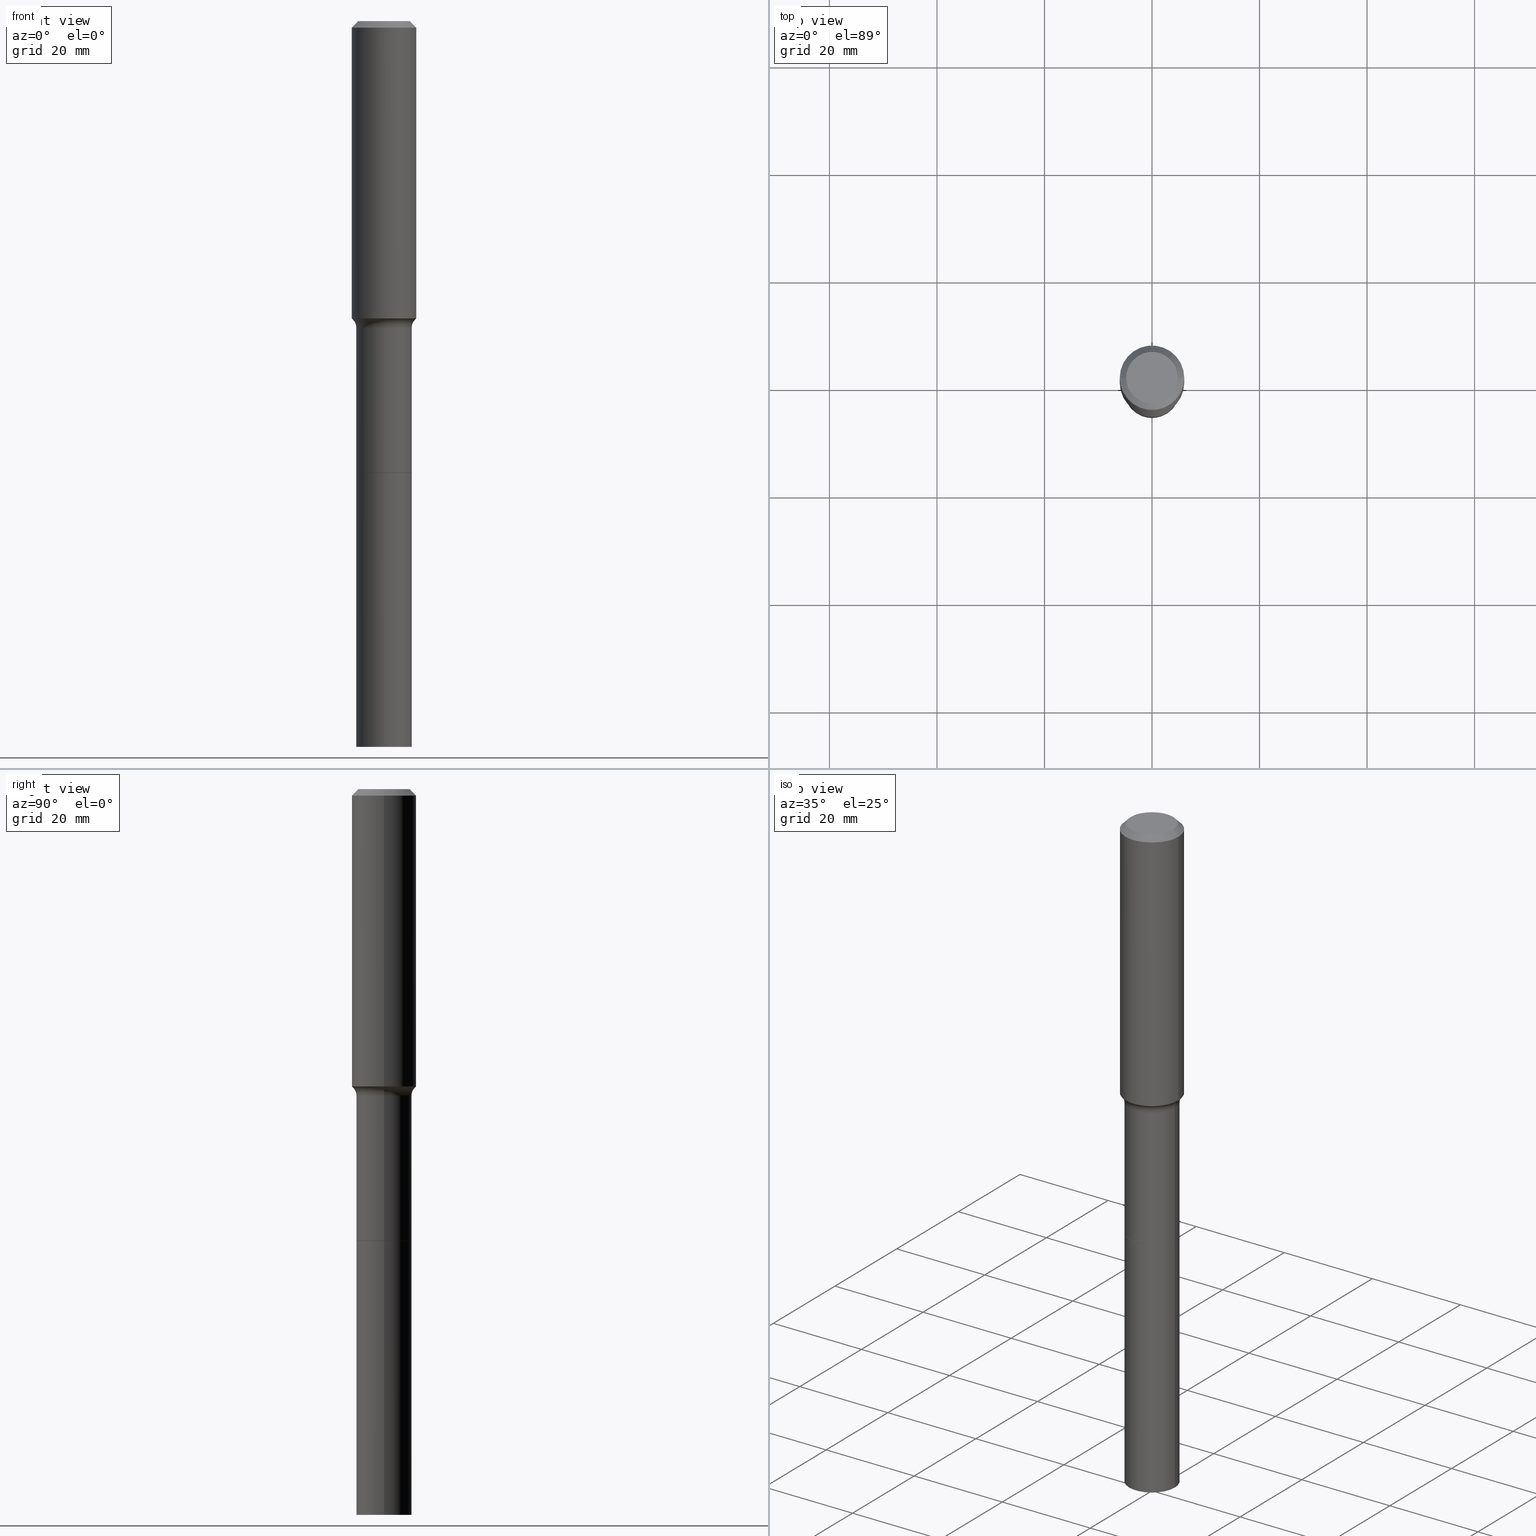
[diagram: canonical four-view strip — front | top / right | iso, engineering-drawing reading convention]
A machine part, canonical four-view strip (front | top / right | iso — engineering-drawing reading convention). The complete STEP part file that produces these views, byte-faithful:
ISO-10303-21;
HEADER;
FILE_DESCRIPTION (( 'STEP AP203' ),
    '1' );
FILE_NAME ('58905.STEP',
    '2025-04-01T15:26:45',
    ( '' ),
    ( '' ),
    'SwSTEP 2.0',
    'SolidWorks 2024',
    '' );
FILE_SCHEMA (( 'CONFIG_CONTROL_DESIGN' ));
ENDSEC;

DATA;
#1 = AXIS2_PLACEMENT_3D ( 'NONE', #25, #315, #224 ) ;
#2 = DIRECTION ( 'NONE',  ( -2.445468806185136597E-29, 3.491481338843145583E-15, 1.000000000000000000 ) ) ;
#3 = APPLICATION_CONTEXT ( 'configuration controlled 3d designs of mechanical parts and assemblies' ) ;
#4 = PLANE ( 'NONE',  #323 ) ;
#5 = EDGE_CURVE ( 'NONE', #101, #383, #95, .T. ) ;
#6 = ADVANCED_FACE ( 'NONE', ( #219 ), #54, .T. ) ;
#7 = CIRCLE ( 'NONE', #379, 0.2031000000000003636 ) ;
#8 = ORIENTED_EDGE ( 'NONE', *, *, #320, .T. ) ;
#9 = CC_DESIGN_APPROVAL ( #261, ( #42 ) ) ;
#10 = EDGE_LOOP ( 'NONE', ( #332, #294, #363, #384 ) ) ;
#11 = LINE ( 'NONE', #296, #63 ) ;
#12 = FACE_OUTER_BOUND ( 'NONE', #263, .T. ) ;
#13 = EDGE_LOOP ( 'NONE', ( #116, #19, #299, #334 ) ) ;
#14 = DIRECTION ( 'NONE',  ( -2.445468806185136597E-29, 3.491481338843145583E-15, 1.000000000000000000 ) ) ;
#15 = DIRECTION ( 'NONE',  ( -2.445468806185136597E-29, 3.491481338843145583E-15, 1.000000000000000000 ) ) ;
#16 = AXIS2_PLACEMENT_3D ( 'NONE', #252, #96, #255 ) ;
#17 = FACE_OUTER_BOUND ( 'NONE', #31, .T. ) ;
#18 = VERTEX_POINT ( 'NONE', #142 ) ;
#19 = ORIENTED_EDGE ( 'NONE', *, *, #47, .T. ) ;
#20 = EDGE_LOOP ( 'NONE', ( #167, #466 ) ) ;
#21 = DIRECTION ( 'NONE',  ( -0.6819983600624879294, 7.399397606724245555E-15, 0.7313537016191801188 ) ) ;
#22 = PERSON_AND_ORGANIZATION ( #472, #506 ) ;
#23 = EDGE_CURVE ( 'NONE', #452, #411, #413, .T. ) ;
#24 = EDGE_CURVE ( 'NONE', #56, #204, #495, .T. ) ;
#25 = CARTESIAN_POINT ( 'NONE',  ( 0.000000000000000000, 0.000000000000000000, 0.000000000000000000 ) ) ;
#26 = VECTOR ( 'NONE', #21, 39.37007874015748854 ) ;
#27 = AXIS2_PLACEMENT_3D ( 'NONE', #354, #516, #196 ) ;
#28 = CARTESIAN_POINT ( 'NONE',  ( 1.155239464041865857E-30, -1.649375784469512352E-16, -0.04724000000000030258 ) ) ;
#29 = DIRECTION ( 'NONE',  ( -2.445468806185136597E-29, 3.491481338843145583E-15, 1.000000000000000000 ) ) ;
#30 = PERSON_AND_ORGANIZATION ( #472, #506 ) ;
#31 = EDGE_LOOP ( 'NONE', ( #297, #210, #415, #454 ) ) ;
#32 = DIRECTION ( 'NONE',  ( -2.445468806185136597E-29, 3.491481338843145583E-15, 1.000000000000000000 ) ) ;
#33 = CARTESIAN_POINT ( 'NONE',  ( 0.2361999999999999933, -1.785387205520586782E-15, -0.04724000000000030258 ) ) ;
#34 = PRODUCT ( '58905', '58905', '', ( #471 ) ) ;
#35 = APPROVAL_DATE_TIME ( #348, #119 ) ;
#36 = PERSON_AND_ORGANIZATION_ROLE ( 'design_owner' ) ;
#37 = CARTESIAN_POINT ( 'NONE',  ( 8.085942607651154722E-29, -1.154458304688486143E-14, -3.306500000000000217 ) ) ;
#38 = DIRECTION ( 'NONE',  ( 2.438088387897960049E-29, -3.491481338843145188E-15, -1.000000000000000000 ) ) ;
#39 = PERSON_AND_ORGANIZATION_ROLE ( 'creator' ) ;
#40 = CC_DESIGN_PERSON_AND_ORGANIZATION_ASSIGNMENT ( #179, #110, ( #42 ) ) ;
#41 = DIRECTION ( 'NONE',  ( -2.445468806185136597E-29, 3.491481338843145583E-15, 1.000000000000000000 ) ) ;
#42 = PRODUCT_DEFINITION_FORMATION_WITH_SPECIFIED_SOURCE ( 'ANY', '', #34, .NOT_KNOWN. ) ;
#43 = CC_DESIGN_DATE_AND_TIME_ASSIGNMENT ( #182, #268, ( #82 ) ) ;
#44 = DIRECTION ( 'NONE',  ( 1.000000000000000000, -6.982962677686265922E-15, 0.000000000000000000 ) ) ;
#45 = DIRECTION ( 'NONE',  ( -1.000000000000000000, 6.982962677686265922E-15, -4.876176775795935793E-29 ) ) ;
#46 = CARTESIAN_POINT ( 'NONE',  ( -0.2030999999999999750, -8.246621289295675448E-15, -3.306500000000000217 ) ) ;
#47 = EDGE_CURVE ( 'NONE', #371, #337, #259, .T. ) ;
#48 = EDGE_CURVE ( 'NONE', #411, #493, #11, .T. ) ;
#49 = EDGE_LOOP ( 'NONE', ( #380, #173, #368, #165 ) ) ;
#50 = FACE_OUTER_BOUND ( 'NONE', #416, .T. ) ;
#51 = ORIENTED_EDGE ( 'NONE', *, *, #24, .T. ) ;
#52 = AXIS2_PLACEMENT_3D ( 'NONE', #322, #192, #356 ) ;
#53 = VERTEX_POINT ( 'NONE', #457 ) ;
#54 = CYLINDRICAL_SURFACE ( 'NONE', #193, 0.2030999999999999472 ) ;
#55 = APPROVAL_PERSON_ORGANIZATION ( #30, #119, #504 ) ;
#56 = VERTEX_POINT ( 'NONE', #375 ) ;
#57 = CARTESIAN_POINT ( 'NONE',  ( 1.299766670487400218E-28, -1.855722331595131973E-14, -5.315000000000000391 ) ) ;
#58 = FACE_OUTER_BOUND ( 'NONE', #444, .T. ) ;
#59 = EDGE_LOOP ( 'NONE', ( #168, #70 ) ) ;
#60 = CARTESIAN_POINT ( 'NONE',  ( -0.2030999999999999472, 1.443112296328763103E-15, -9.990357168307711400E-30 ) ) ;
#61 = CARTESIAN_POINT ( 'NONE',  ( 8.087165342054247524E-29, -1.154632878755428372E-14, -3.307000000000000384 ) ) ;
#62 = CC_DESIGN_PERSON_AND_ORGANIZATION_ASSIGNMENT ( #427, #262, ( #82 ) ) ;
#63 = VECTOR ( 'NONE', #449, 39.37007874015748143 ) ;
#64 = ORIENTED_EDGE ( 'NONE', *, *, #155, .F. ) ;
#65 = EDGE_CURVE ( 'NONE', #101, #18, #481, .T. ) ;
#66 = COORDINATED_UNIVERSAL_TIME_OFFSET ( 5, 0, .BEHIND. ) ;
#67 = EDGE_CURVE ( 'NONE', #499, #251, #267, .T. ) ;
#68 = FACE_OUTER_BOUND ( 'NONE', #386, .T. ) ;
#69 = DIMENSIONAL_EXPONENTS ( 1.000000000000000000, 0.000000000000000000, 0.000000000000000000, 0.000000000000000000, 0.000000000000000000, 0.000000000000000000, 0.000000000000000000 ) ;
#70 = ORIENTED_EDGE ( 'NONE', *, *, #478, .T. ) ;
#71 = DIRECTION ( 'NONE',  ( -1.000000000000000000, 6.982962677686266711E-15, 0.000000000000000000 ) ) ;
#72 = AXIS2_PLACEMENT_3D ( 'NONE', #37, #510, #352 ) ;
#73 =( LENGTH_UNIT ( ) NAMED_UNIT ( * ) SI_UNIT ( $, .METRE. ) );
#74 = EDGE_CURVE ( 'NONE', #383, #324, #390, .T. ) ;
#75 = DIRECTION ( 'NONE',  ( -2.445468806185136597E-29, 3.491481338843145583E-15, 1.000000000000000000 ) ) ;
#76 = PERSON_AND_ORGANIZATION ( #472, #506 ) ;
#77 = DIRECTION ( 'NONE',  ( -6.982962677686266711E-15, -1.000000000000000000, 3.491481338843145583E-15 ) ) ;
#78 = CARTESIAN_POINT ( 'NONE',  ( -0.2362000000000001321, 1.678301941865357577E-15, -1.161852468318209457E-29 ) ) ;
#79 = PERSON_AND_ORGANIZATION ( #472, #506 ) ;
#80 = AXIS2_PLACEMENT_3D ( 'NONE', #440, #124, #441 ) ;
#81 = AXIS2_PLACEMENT_3D ( 'NONE', #28, #467, #221 ) ;
#82 = SECURITY_CLASSIFICATION ( '', '', #175 ) ;
#83 = CARTESIAN_POINT ( 'NONE',  ( 8.085942607651154722E-29, -1.154458304688486143E-14, -3.306500000000000217 ) ) ;
#84 = CARTESIAN_POINT ( 'NONE',  ( 8.087165342054247524E-29, -1.154632878755428372E-14, -3.307000000000000384 ) ) ;
#85 = AXIS2_PLACEMENT_3D ( 'NONE', #362, #406, #45 ) ;
#86 = PLANE ( 'NONE',  #85 ) ;
#87 = CARTESIAN_POINT ( 'NONE',  ( 0.2245917038704665358, -9.212704846427067432E-15, -2.189440131195000472 ) ) ;
#88 = EDGE_LOOP ( 'NONE', ( #366, #257, #248, #103 ) ) ;
#89 = ORIENTED_EDGE ( 'NONE', *, *, #487, .F. ) ;
#90 = ORIENTED_EDGE ( 'NONE', *, *, #121, .F. ) ;
#91 = CARTESIAN_POINT ( 'NONE',  ( 5.354207543847266757E-29, -7.644389360581633134E-15, -2.189440131195000472 ) ) ;
#92 = LOCAL_TIME ( 11, 26, 45.00000000000000000, #341 ) ;
#93 = CIRCLE ( 'NONE', #353, 0.2362000000000002709 ) ;
#94 = ORIENTED_EDGE ( 'NONE', *, *, #139, .F. ) ;
#95 = LINE ( 'NONE', #213, #26 ) ;
#96 = DIRECTION ( 'NONE',  ( -2.445468806185136597E-29, 3.491481338843145583E-15, 1.000000000000000000 ) ) ;
#97 = CARTESIAN_POINT ( 'NONE',  ( 0.2361999999999999933, -1.814313362916447440E-15, -0.04724000000000030258 ) ) ;
#98 = ORIENTED_EDGE ( 'NONE', *, *, #67, .F. ) ;
#99 = CC_DESIGN_DATE_AND_TIME_ASSIGNMENT ( #469, #216, ( #285 ) ) ;
#100 = ORIENTED_EDGE ( 'NONE', *, *, #338, .F. ) ;
#101 = VERTEX_POINT ( 'NONE', #109 ) ;
#102 = CARTESIAN_POINT ( 'NONE',  ( -9.427742298522546243E-47, 1.346031739168365344E-32, 3.855188123715862256E-18 ) ) ;
#103 = ORIENTED_EDGE ( 'NONE', *, *, #446, .F. ) ;
#104 = EDGE_CURVE ( 'NONE', #53, #371, #477, .T. ) ;
#105 = ADVANCED_FACE ( 'NONE', ( #393 ), #229, .T. ) ;
#106 = AXIS2_PLACEMENT_3D ( 'NONE', #343, #350, #423 ) ;
#107 = DIRECTION ( 'NONE',  ( -2.445468806185136877E-29, 3.491481338843145188E-15, 1.000000000000000000 ) ) ;
#108 = FACE_OUTER_BOUND ( 'NONE', #378, .T. ) ;
#109 = CARTESIAN_POINT ( 'NONE',  ( -0.2245917038704663971, -6.048569323610197986E-15, -2.189440131195000472 ) ) ;
#110 = PERSON_AND_ORGANIZATION_ROLE ( 'design_supplier' ) ;
#111 = CYLINDRICAL_SURFACE ( 'NONE', #187, 0.2031000000000001970 ) ;
#112 = DIRECTION ( 'NONE',  ( -2.438088387897960049E-29, 3.491481338843145188E-15, 1.000000000000000000 ) ) ;
#113 = AXIS2_PLACEMENT_3D ( 'NONE', #186, #177, #511 ) ;
#114 = DIRECTION ( 'NONE',  ( 1.000000000000000000, 0.000000000000000000, 0.000000000000000000 ) ) ;
#115 = FACE_OUTER_BOUND ( 'NONE', #49, .T. ) ;
#116 = ORIENTED_EDGE ( 'NONE', *, *, #338, .T. ) ;
#117 = DIRECTION ( 'NONE',  ( 1.000000000000000000, -6.982962677686264344E-15, 0.000000000000000000 ) ) ;
#118 = APPROVAL ( #276, 'UNSPECIFIED' ) ;
#119 = APPROVAL ( #420, 'UNSPECIFIED' ) ;
#120 = EDGE_CURVE ( 'NONE', #324, #251, #280, .T. ) ;
#121 = EDGE_CURVE ( 'NONE', #172, #166, #234, .T. ) ;
#122 = VECTOR ( 'NONE', #227, 39.37007874015748143 ) ;
#123 = AXIS2_PLACEMENT_3D ( 'NONE', #102, #431, #190 ) ;
#124 = DIRECTION ( 'NONE',  ( -2.445468806185136597E-29, 3.491481338843145583E-15, 1.000000000000000000 ) ) ;
#125 = DIRECTION ( 'NONE',  ( 1.000000000000000000, -6.982962677686265922E-15, 0.000000000000000000 ) ) ;
#126 = DIRECTION ( 'NONE',  ( -2.445468806185136597E-29, 3.491481338843145583E-15, 1.000000000000000000 ) ) ;
#127 = CONICAL_SURFACE ( 'NONE', #460, 0.2245917038704665358, 0.7504915783575474286 ) ;
#128 = CARTESIAN_POINT ( 'NONE',  ( 0.2030999999999999750, -1.296282276672294141E-14, -3.306500000000000217 ) ) ;
#129 = EDGE_LOOP ( 'NONE', ( #303, #164, #330, #141 ) ) ;
#130 = ORIENTED_EDGE ( 'NONE', *, *, #74, .T. ) ;
#131 = MANIFOLD_SOLID_BREP ( 'Body-Move/Copy2[2]', #480 ) ;
#132 = ORIENTED_EDGE ( 'NONE', *, *, #447, .T. ) ;
#133 = AXIS2_PLACEMENT_3D ( 'NONE', #475, #32, #232 ) ;
#134 = VECTOR ( 'NONE', #442, 39.37007874015748143 ) ;
#135 = ORIENTED_EDGE ( 'NONE', *, *, #23, .T. ) ;
#136 = CARTESIAN_POINT ( 'NONE',  ( 0.2026000000000000023, -1.296107702605352070E-14, -3.307000000000000384 ) ) ;
#137 = ORIENTED_EDGE ( 'NONE', *, *, #326, .F. ) ;
#138 = EDGE_CURVE ( 'NONE', #337, #493, #298, .T. ) ;
#139 = EDGE_CURVE ( 'NONE', #53, #452, #188, .T. ) ;
#140 = ORIENTED_EDGE ( 'NONE', *, *, #339, .T. ) ;
#141 = ORIENTED_EDGE ( 'NONE', *, *, #138, .F. ) ;
#142 = CARTESIAN_POINT ( 'NONE',  ( 0.2245917038704663971, -9.212704846427067432E-15, -2.189440131195000472 ) ) ;
#143 = AXIS2_PLACEMENT_3D ( 'NONE', #198, #15, #414 ) ;
#144 = VECTOR ( 'NONE', #284, 39.37007874015748143 ) ;
#145 = APPROVAL_STATUS ( 'not_yet_approved' ) ;
#146 = LINE ( 'NONE', #355, #418 ) ;
#147 = FACE_OUTER_BOUND ( 'NONE', #88, .T. ) ;
#148 = DIRECTION ( 'NONE',  ( -2.445468806185136877E-29, 3.491481338843145188E-15, 1.000000000000000000 ) ) ;
#149 = CARTESIAN_POINT ( 'NONE',  ( -0.2026000000000000023, -1.010676920490432152E-14, -3.307000000000000384 ) ) ;
#150 = CYLINDRICAL_SURFACE ( 'NONE', #1, 0.2030999999999999472 ) ;
#151 = AXIS2_PLACEMENT_3D ( 'NONE', #312, #277, #117 ) ;
#152 = CARTESIAN_POINT ( 'NONE',  ( 0.000000000000000000, 0.000000000000000000, 0.000000000000000000 ) ) ;
#153 = DIRECTION ( 'NONE',  ( 2.438088387897960049E-29, -3.491481338843145188E-15, -1.000000000000000000 ) ) ;
#154 = DIRECTION ( 'NONE',  ( -1.000000000000000000, 6.982962677686265922E-15, -4.876176775795935793E-29 ) ) ;
#155 = EDGE_CURVE ( 'NONE', #492, #251, #319, .T. ) ;
#156 = DIRECTION ( 'NONE',  ( 1.000000000000000000, -6.982962677686266711E-15, 4.876176775795936353E-29 ) ) ;
#157 = TOROIDAL_SURFACE ( 'NONE', #358, 0.2830999999999998518, 0.07999999999999994615 ) ;
#158 = DIRECTION ( 'NONE',  ( 1.000000000000000000, -6.982962677686269077E-15, 0.000000000000000000 ) ) ;
#159 = CARTESIAN_POINT ( 'NONE',  ( 0.2031000000000000028, -1.296456850739236371E-14, -3.307000000000000384 ) ) ;
#160 = ADVANCED_BREP_SHAPE_REPRESENTATION ( '58905', ( #313, #131, #250 ), #344 ) ;
#161 = DIRECTION ( 'NONE',  ( 7.105427357601001859E-15, 1.000000000000000000, -3.491481338843145583E-15 ) ) ;
#162 = CIRCLE ( 'NONE', #486, 0.2245917038704665358 ) ;
#163 = ORIENTED_EDGE ( 'NONE', *, *, #433, .T. ) ;
#164 = ORIENTED_EDGE ( 'NONE', *, *, #230, .T. ) ;
#165 = ORIENTED_EDGE ( 'NONE', *, *, #308, .F. ) ;
#166 = VERTEX_POINT ( 'NONE', #159 ) ;
#167 = ORIENTED_EDGE ( 'NONE', *, *, #264, .F. ) ;
#168 = ORIENTED_EDGE ( 'NONE', *, *, #410, .T. ) ;
#169 = EDGE_CURVE ( 'NONE', #18, #101, #162, .T. ) ;
#170 = ORIENTED_EDGE ( 'NONE', *, *, #290, .T. ) ;
#171 = DIRECTION ( 'NONE',  ( 1.000000000000000000, -6.982962677686265922E-15, 0.000000000000000000 ) ) ;
#172 = VERTEX_POINT ( 'NONE', #474 ) ;
#173 = ORIENTED_EDGE ( 'NONE', *, *, #65, .T. ) ;
#174 = EDGE_LOOP ( 'NONE', ( #405, #170, #340, #328 ) ) ;
#175 = SECURITY_CLASSIFICATION_LEVEL ( 'unclassified' ) ;
#176 = APPROVAL_ROLE ( '' ) ;
#177 = DIRECTION ( 'NONE',  ( -2.445468806185136597E-29, 3.491481338843145583E-15, 1.000000000000000000 ) ) ;
#178 = CONICAL_SURFACE ( 'NONE', #438, 0.2026000000000000023, 0.7853981633972434429 ) ;
#179 = PERSON_AND_ORGANIZATION ( #472, #506 ) ;
#180 = CARTESIAN_POINT ( 'NONE',  ( 0.2830999999999998518, -9.811760858417002044E-15, -2.244000000000000217 ) ) ;
#181 = CALENDAR_DATE ( 2025, 1, 4 ) ;
#182 = DATE_AND_TIME ( #462, #369 ) ;
#183 = ORIENTED_EDGE ( 'NONE', *, *, #487, .T. ) ;
#184 = APPLICATION_PROTOCOL_DEFINITION ( 'international standard', 'config_control_design', 1994, #295 ) ;
#185 = CARTESIAN_POINT ( 'NONE',  ( 8.087165342054247524E-29, -1.154632878755428372E-14, -3.307000000000000384 ) ) ;
#186 = CARTESIAN_POINT ( 'NONE',  ( 1.155239464041865857E-30, -1.649375784469512352E-16, -0.04724000000000030258 ) ) ;
#187 = AXIS2_PLACEMENT_3D ( 'NONE', #517, #388, #394 ) ;
#188 = CIRCLE ( 'NONE', #389, 0.2026000000000000023 ) ;
#189 = ADVANCED_FACE ( 'NONE', ( #432 ), #150, .T. ) ;
#190 = DIRECTION ( 'NONE',  ( 1.000000000000000000, -6.982962677686266711E-15, 4.876185090822587894E-29 ) ) ;
#191 = ADVANCED_FACE ( 'NONE', ( #507 ), #233, .F. ) ;
#192 = DIRECTION ( 'NONE',  ( -2.445468806185136597E-29, 3.491481338843145583E-15, 1.000000000000000000 ) ) ;
#193 = AXIS2_PLACEMENT_3D ( 'NONE', #208, #372, #503 ) ;
#194 = CONICAL_SURFACE ( 'NONE', #260, 0.2245917038704665358, 0.7504915783575474286 ) ;
#195 = DIRECTION ( 'NONE',  ( 1.000000000000000000, -6.982962677686266711E-15, 0.000000000000000000 ) ) ;
#196 = DIRECTION ( 'NONE',  ( 1.000000000000000000, -6.982962677686264344E-15, 0.000000000000000000 ) ) ;
#197 = CARTESIAN_POINT ( 'NONE',  ( 5.487632001079447088E-29, -7.834884124364020406E-15, -2.244000000000000217 ) ) ;
#198 = CARTESIAN_POINT ( 'NONE',  ( 8.087165342054247524E-29, -1.154632878755428372E-14, -3.307000000000000384 ) ) ;
#199 = ORIENTED_EDGE ( 'NONE', *, *, #104, .T. ) ;
#200 = PRODUCT_RELATED_PRODUCT_CATEGORY ( 'detail', '', ( #34 ) ) ;
#201 = CARTESIAN_POINT ( 'NONE',  ( -0.2830999999999998518, -5.823337639427176649E-15, -2.244000000000000217 ) ) ;
#202 = CARTESIAN_POINT ( 'NONE',  ( 0.000000000000000000, 0.000000000000000000, 0.000000000000000000 ) ) ;
#203 = ADVANCED_FACE ( 'NONE', ( #115 ), #127, .T. ) ;
#204 = VERTEX_POINT ( 'NONE', #325 ) ;
#205 = VECTOR ( 'NONE', #434, 39.37007874015748143 ) ;
#206 = ADVANCED_FACE ( 'NONE', ( #147 ), #194, .T. ) ;
#207 = DIRECTION ( 'NONE',  ( 1.000000000000000000, -6.982962677686266711E-15, 4.876176775795936353E-29 ) ) ;
#208 = CARTESIAN_POINT ( 'NONE',  ( 0.000000000000000000, 0.000000000000000000, 0.000000000000000000 ) ) ;
#209 = ORIENTED_EDGE ( 'NONE', *, *, #169, .F. ) ;
#210 = ORIENTED_EDGE ( 'NONE', *, *, #308, .T. ) ;
#211 = CARTESIAN_POINT ( 'NONE',  ( 8.087165342054247524E-29, -1.154632878755428372E-14, -3.307000000000000384 ) ) ;
#212 = CYLINDRICAL_SURFACE ( 'NONE', #443, 0.2362000000000001321 ) ;
#213 = CARTESIAN_POINT ( 'NONE',  ( -0.2245917038704665358, -6.048569323610197197E-15, -2.189440131195000472 ) ) ;
#214 = AXIS2_PLACEMENT_3D ( 'NONE', #211, #376, #484 ) ;
#215 = VECTOR ( 'NONE', #240, 39.37007874015748143 ) ;
#216 = DATE_TIME_ROLE ( 'creation_date' ) ;
#217 = CALENDAR_DATE ( 2025, 1, 4 ) ;
#218 = ORIENTED_EDGE ( 'NONE', *, *, #120, .T. ) ;
#219 = FACE_OUTER_BOUND ( 'NONE', #129, .T. ) ;
#220 = ADVANCED_FACE ( 'NONE', ( #464 ), #398, .T. ) ;
#221 = DIRECTION ( 'NONE',  ( -1.000000000000000000, 6.982962677686266711E-15, 0.000000000000000000 ) ) ;
#222 = DIRECTION ( 'NONE',  ( 1.000000000000000000, -6.982962677686261977E-15, 0.000000000000000000 ) ) ;
#223 = EDGE_CURVE ( 'NONE', #18, #493, #235, .T. ) ;
#224 = DIRECTION ( 'NONE',  ( 1.000000000000000000, -6.982962677686266711E-15, 4.876176775795935793E-29 ) ) ;
#225 = AXIS2_PLACEMENT_3D ( 'NONE', #373, #126, #445 ) ;
#226 = PERSON_AND_ORGANIZATION ( #472, #506 ) ;
#227 = DIRECTION ( 'NONE',  ( -2.445468806185136877E-29, 3.491481338843145188E-15, 1.000000000000000000 ) ) ;
#228 = APPLICATION_PROTOCOL_DEFINITION ( 'international standard', 'config_control_design', 1994, #3 ) ;
#229 = PLANE ( 'NONE',  #437 ) ;
#230 = EDGE_CURVE ( 'NONE', #371, #411, #342, .T. ) ;
#231 = CARTESIAN_POINT ( 'NONE',  ( -0.2361999999999999933, -2.204629895681507301E-15, -0.04724000000000030258 ) ) ;
#232 = DIRECTION ( 'NONE',  ( 1.000000000000000000, -6.982962677686267499E-15, 0.000000000000000000 ) ) ;
#233 = PLANE ( 'NONE',  #317 ) ;
#234 = CIRCLE ( 'NONE', #151, 0.2031000000000000028 ) ;
#235 = CIRCLE ( 'NONE', #458, 0.07999999999999993228 ) ;
#236 = COORDINATED_UNIVERSAL_TIME_OFFSET ( 5, 0, .BEHIND. ) ;
#237 = LOCAL_TIME ( 11, 26, 45.00000000000000000, #387 ) ;
#238 = CONICAL_SURFACE ( 'NONE', #214, 0.2026000000000000023, 0.7853981633972434429 ) ;
#239 = AXIS2_PLACEMENT_3D ( 'NONE', #202, #367, #207 ) ;
#240 = DIRECTION ( 'NONE',  ( -0.7071067811864026886, 7.493145998869830357E-15, 0.7071067811866923458 ) ) ;
#241 = DIRECTION ( 'NONE',  ( 0.6819983600624879294, -2.208861293262368123E-15, 0.7313537016191801188 ) ) ;
#242 = DIRECTION ( 'NONE',  ( 1.000000000000000000, -6.982962677686261977E-15, 0.000000000000000000 ) ) ;
#243 = LINE ( 'NONE', #364, #496 ) ;
#244 = ADVANCED_FACE ( 'NONE', ( #12 ), #86, .F. ) ;
#245 = ADVANCED_FACE ( 'NONE', ( #370 ), #157, .F. ) ;
#246 = CARTESIAN_POINT ( 'NONE',  ( 5.487632001079447088E-29, -7.834884124364020406E-15, -2.244000000000000217 ) ) ;
#247 = CIRCLE ( 'NONE', #143, 0.2031000000000000028 ) ;
#248 = ORIENTED_EDGE ( 'NONE', *, *, #307, .F. ) ;
#249 = CIRCLE ( 'NONE', #288, 0.07999999999999993228 ) ;
#250 = AXIS2_PLACEMENT_3D ( 'NONE', #152, #318, #114 ) ;
#251 = VERTEX_POINT ( 'NONE', #97 ) ;
#252 = CARTESIAN_POINT ( 'NONE',  ( -9.427742298522546243E-47, 1.346031739168365344E-32, 3.855188123715862256E-18 ) ) ;
#253 = EDGE_LOOP ( 'NONE', ( #329, #130, #137, #98 ) ) ;
#254 = VERTEX_POINT ( 'NONE', #403 ) ;
#255 = DIRECTION ( 'NONE',  ( 1.000000000000000000, -6.982962677686266711E-15, 4.876185090822587894E-29 ) ) ;
#256 = ORIENTED_EDGE ( 'NONE', *, *, #104, .F. ) ;
#257 = ORIENTED_EDGE ( 'NONE', *, *, #5, .T. ) ;
#258 = VECTOR ( 'NONE', #241, 39.37007874015748854 ) ;
#259 = LINE ( 'NONE', #60, #272 ) ;
#260 = AXIS2_PLACEMENT_3D ( 'NONE', #359, #29, #309 ) ;
#261 = APPROVAL ( #145, 'UNSPECIFIED' ) ;
#262 = PERSON_AND_ORGANIZATION_ROLE ( 'classification_officer' ) ;
#263 = EDGE_LOOP ( 'NONE', ( #163, #421 ) ) ;
#264 = EDGE_CURVE ( 'NONE', #204, #56, #7, .T. ) ;
#265 = PERSON_AND_ORGANIZATION_ROLE ( 'creator' ) ;
#266 =( CONVERSION_BASED_UNIT ( 'INCH', #311 ) LENGTH_UNIT ( ) NAMED_UNIT ( #69 ) );
#267 = LINE ( 'NONE', #397, #122 ) ;
#268 = DATE_TIME_ROLE ( 'classification_date' ) ;
#269 = CYLINDRICAL_SURFACE ( 'NONE', #133, 0.2031000000000001970 ) ;
#270 = DIRECTION ( 'NONE',  ( 1.000000000000000000, -6.982962677686265922E-15, 4.876176775795935793E-29 ) ) ;
#271 = CONICAL_SURFACE ( 'NONE', #81, 0.2361999999999999933, 0.7853981633974450594 ) ;
#272 = VECTOR ( 'NONE', #107, 39.37007874015748143 ) ;
#273 = CARTESIAN_POINT ( 'NONE',  ( 5.354207543847266757E-29, -7.644389360581633134E-15, -2.189440131195000472 ) ) ;
#274 = DIRECTION ( 'NONE',  ( -2.445468806185136597E-29, 3.491481338843145583E-15, 1.000000000000000000 ) ) ;
#275 = ORIENTED_EDGE ( 'NONE', *, *, #381, .F. ) ;
#276 = APPROVAL_STATUS ( 'not_yet_approved' ) ;
#277 = DIRECTION ( 'NONE',  ( -2.445468806185136597E-29, 3.491481338843145583E-15, 1.000000000000000000 ) ) ;
#278 = CARTESIAN_POINT ( 'NONE',  ( -0.2030999999999998640, -8.246621289295677025E-15, -2.244000000000000217 ) ) ;
#279 = APPROVAL_DATE_TIME ( #436, #118 ) ;
#280 = CIRCLE ( 'NONE', #113, 0.2361999999999999933 ) ;
#281 = APPROVAL_PERSON_ORGANIZATION ( #22, #118, #176 ) ;
#282 = PRODUCT_DEFINITION_SHAPE ( 'NONE', 'NONE',  #285 ) ;
#283 = CC_DESIGN_APPROVAL ( #119, ( #82 ) ) ;
#284 = DIRECTION ( 'NONE',  ( 0.7071067811865452413, -7.319954787623248157E-15, -0.7071067811865497932 ) ) ;
#285 = PRODUCT_DEFINITION ( 'UNKNOWN', '', #42, #293 ) ;
#286 = LINE ( 'NONE', #87, #258 ) ;
#287 = AXIS2_PLACEMENT_3D ( 'NONE', #57, #461, #222 ) ;
#288 = AXIS2_PLACEMENT_3D ( 'NONE', #201, #161, #490 ) ;
#289 = CARTESIAN_POINT ( 'NONE',  ( 1.299766670487400218E-28, -1.855722331595131973E-14, -5.315000000000000391 ) ) ;
#290 = EDGE_CURVE ( 'NONE', #101, #337, #249, .T. ) ;
#291 = ADVANCED_FACE ( 'NONE', ( #17 ), #212, .T. ) ;
#292 = DIRECTION ( 'NONE',  ( -2.445468806185136597E-29, 3.491481338843145583E-15, 1.000000000000000000 ) ) ;
#293 = DESIGN_CONTEXT ( 'detailed design', #3, 'design' ) ;
#294 = ORIENTED_EDGE ( 'NONE', *, *, #155, .T. ) ;
#295 = APPLICATION_CONTEXT ( 'configuration controlled 3d designs of mechanical parts and assemblies' ) ;
#296 = CARTESIAN_POINT ( 'NONE',  ( 0.2030999999999999472, -1.418239719838080381E-15, 9.903515031641543342E-30 ) ) ;
#297 = ORIENTED_EDGE ( 'NONE', *, *, #74, .F. ) ;
#298 = CIRCLE ( 'NONE', #106, 0.2030999999999998640 ) ;
#299 = ORIENTED_EDGE ( 'NONE', *, *, #339, .F. ) ;
#300 = DIRECTION ( 'NONE',  ( -2.445468806185136597E-29, 3.491481338843145583E-15, 1.000000000000000000 ) ) ;
#301 = ORIENTED_EDGE ( 'NONE', *, *, #264, .T. ) ;
#302 = DIRECTION ( 'NONE',  ( 1.000000000000000000, -6.982962677686266711E-15, 0.000000000000000000 ) ) ;
#303 = ORIENTED_EDGE ( 'NONE', *, *, #47, .F. ) ;
#304 = DIRECTION ( 'NONE',  ( 0.7071067811864026886, -2.468850131080739687E-15, 0.7071067811866923458 ) ) ;
#305 = CIRCLE ( 'NONE', #80, 0.2361999999999999933 ) ;
#306 = ORIENTED_EDGE ( 'NONE', *, *, #447, .F. ) ;
#307 = EDGE_CURVE ( 'NONE', #499, #383, #93, .T. ) ;
#308 = EDGE_CURVE ( 'NONE', #383, #499, #333, .T. ) ;
#309 = DIRECTION ( 'NONE',  ( 1.000000000000000000, -6.982962677686266711E-15, 0.000000000000000000 ) ) ;
#310 = DATE_AND_TIME ( #470, #237 ) ;
#311 = LENGTH_MEASURE_WITH_UNIT ( LENGTH_MEASURE( 0.02539999999999999897 ), #73 );
#312 = CARTESIAN_POINT ( 'NONE',  ( 8.087165342054247524E-29, -1.154632878755428372E-14, -3.307000000000000384 ) ) ;
#313 = MANIFOLD_SOLID_BREP ( 'Body-Move/Copy2[1]', #331 ) ;
#314 = CARTESIAN_POINT ( 'NONE',  ( 0.1889600000000000168, -1.540873453589747738E-15, 3.855188123725863225E-18 ) ) ;
#315 = DIRECTION ( 'NONE',  ( -2.445468806185136597E-29, 3.491481338843145583E-15, 1.000000000000000000 ) ) ;
#316 = APPROVAL_PERSON_ORGANIZATION ( #351, #261, #465 ) ;
#317 = AXIS2_PLACEMENT_3D ( 'NONE', #185, #112, #270 ) ;
#318 = DIRECTION ( 'NONE',  ( 0.000000000000000000, 0.000000000000000000, 1.000000000000000000 ) ) ;
#319 = LINE ( 'NONE', #33, #144 ) ;
#320 = EDGE_CURVE ( 'NONE', #254, #324, #357, .T. ) ;
#321 = VECTOR ( 'NONE', #304, 39.37007874015748143 ) ;
#322 = CARTESIAN_POINT ( 'NONE',  ( 5.323765434652751771E-29, -7.600926096646780419E-15, -2.176991757648987669 ) ) ;
#323 = AXIS2_PLACEMENT_3D ( 'NONE', #396, #38, #154 ) ;
#324 = VERTEX_POINT ( 'NONE', #231 ) ;
#325 = CARTESIAN_POINT ( 'NONE',  ( 0.2031000000000003636, -1.997546303578940445E-14, -5.315000000000000391 ) ) ;
#326 = EDGE_CURVE ( 'NONE', #251, #324, #305, .T. ) ;
#327 = AXIS2_PLACEMENT_3D ( 'NONE', #91, #14, #302 ) ;
#328 = ORIENTED_EDGE ( 'NONE', *, *, #223, .F. ) ;
#329 = ORIENTED_EDGE ( 'NONE', *, *, #307, .T. ) ;
#330 = ORIENTED_EDGE ( 'NONE', *, *, #48, .T. ) ;
#331 = CLOSED_SHELL ( 'NONE', ( #488, #105, #508, #244 ) ) ;
#332 = ORIENTED_EDGE ( 'NONE', *, *, #478, .F. ) ;
#333 = CIRCLE ( 'NONE', #52, 0.2362000000000002709 ) ;
#334 = ORIENTED_EDGE ( 'NONE', *, *, #48, .F. ) ;
#335 = EDGE_LOOP ( 'NONE', ( #455, #199, #100, #491 ) ) ;
#336 = EDGE_LOOP ( 'NONE', ( #275, #94 ) ) ;
#337 = VERTEX_POINT ( 'NONE', #278 ) ;
#338 = EDGE_CURVE ( 'NONE', #411, #371, #365, .T. ) ;
#339 = EDGE_CURVE ( 'NONE', #493, #337, #408, .T. ) ;
#340 = ORIENTED_EDGE ( 'NONE', *, *, #138, .T. ) ;
#341 = COORDINATED_UNIVERSAL_TIME_OFFSET ( 5, 0, .BEHIND. ) ;
#342 = CIRCLE ( 'NONE', #72, 0.2030999999999999750 ) ;
#343 = CARTESIAN_POINT ( 'NONE',  ( 5.487632001079447088E-29, -7.834884124364020406E-15, -2.244000000000000217 ) ) ;
#344 =( GEOMETRIC_REPRESENTATION_CONTEXT ( 3 ) GLOBAL_UNCERTAINTY_ASSIGNED_CONTEXT ( ( #489 ) ) GLOBAL_UNIT_ASSIGNED_CONTEXT ( ( #266, #513, #479 ) ) REPRESENTATION_CONTEXT ( 'NONE', 'WORKASPACE' ) );
#345 = CC_DESIGN_SECURITY_CLASSIFICATION ( #82, ( #42 ) ) ;
#346 = DIRECTION ( 'NONE',  ( 1.000000000000000000, -6.982962677686265133E-15, 0.000000000000000000 ) ) ;
#347 = ADVANCED_FACE ( 'NONE', ( #360 ), #4, .F. ) ;
#348 = DATE_AND_TIME ( #217, #509 ) ;
#349 = FACE_OUTER_BOUND ( 'NONE', #412, .T. ) ;
#350 = DIRECTION ( 'NONE',  ( -2.445468806185136597E-29, 3.491481338843145583E-15, 1.000000000000000000 ) ) ;
#351 = PERSON_AND_ORGANIZATION ( #472, #506 ) ;
#352 = DIRECTION ( 'NONE',  ( 1.000000000000000000, -6.982962677686265922E-15, 0.000000000000000000 ) ) ;
#353 = AXIS2_PLACEMENT_3D ( 'NONE', #518, #401, #158 ) ;
#354 = CARTESIAN_POINT ( 'NONE',  ( 5.487632001079447088E-29, -7.834884124364020406E-15, -2.244000000000000217 ) ) ;
#355 = CARTESIAN_POINT ( 'NONE',  ( -0.2031000000000001970, -1.010321649122551983E-14, -3.307000000000000384 ) ) ;
#356 = DIRECTION ( 'NONE',  ( 1.000000000000000000, -6.982962677686269077E-15, 0.000000000000000000 ) ) ;
#357 = LINE ( 'NONE', #430, #205 ) ;
#358 = AXIS2_PLACEMENT_3D ( 'NONE', #197, #292, #451 ) ;
#359 = CARTESIAN_POINT ( 'NONE',  ( 5.354207543847266757E-29, -7.644389360581633134E-15, -2.189440131195000472 ) ) ;
#360 = FACE_OUTER_BOUND ( 'NONE', #59, .T. ) ;
#361 = DIRECTION ( 'NONE',  ( -2.445468806185136597E-29, 3.491481338843145583E-15, 1.000000000000000000 ) ) ;
#362 = CARTESIAN_POINT ( 'NONE',  ( 8.087165342054247524E-29, -1.154632878755428372E-14, -3.307000000000000384 ) ) ;
#363 = ORIENTED_EDGE ( 'NONE', *, *, #326, .T. ) ;
#364 = CARTESIAN_POINT ( 'NONE',  ( 0.2031000000000001970, -1.296456850739236686E-14, -3.307000000000000384 ) ) ;
#365 = CIRCLE ( 'NONE', #505, 0.2030999999999999750 ) ;
#366 = ORIENTED_EDGE ( 'NONE', *, *, #169, .T. ) ;
#367 = DIRECTION ( 'NONE',  ( -2.445468806185136597E-29, 3.491481338843145583E-15, 1.000000000000000000 ) ) ;
#368 = ORIENTED_EDGE ( 'NONE', *, *, #446, .T. ) ;
#369 = LOCAL_TIME ( 11, 26, 45.00000000000000000, #66 ) ;
#370 = FACE_OUTER_BOUND ( 'NONE', #174, .T. ) ;
#371 = VERTEX_POINT ( 'NONE', #46 ) ;
#372 = DIRECTION ( 'NONE',  ( -2.445468806185136597E-29, 3.491481338843145583E-15, 1.000000000000000000 ) ) ;
#373 = CARTESIAN_POINT ( 'NONE',  ( 8.087165342054247524E-29, -1.154632878755428372E-14, -3.307000000000000384 ) ) ;
#374 = DIRECTION ( 'NONE',  ( -2.445468806185136597E-29, 3.491481338843145583E-15, 1.000000000000000000 ) ) ;
#375 = CARTESIAN_POINT ( 'NONE',  ( -0.2031000000000003636, -1.360866375542403310E-14, -5.315000000000000391 ) ) ;
#376 = DIRECTION ( 'NONE',  ( -2.445468806185136597E-29, 3.491481338843145583E-15, 1.000000000000000000 ) ) ;
#377 = CARTESIAN_POINT ( 'NONE',  ( 0.000000000000000000, 0.000000000000000000, 0.000000000000000000 ) ) ;
#378 = EDGE_LOOP ( 'NONE', ( #89, #51, #132, #90 ) ) ;
#379 = AXIS2_PLACEMENT_3D ( 'NONE', #289, #361, #242 ) ;
#380 = ORIENTED_EDGE ( 'NONE', *, *, #5, .F. ) ;
#381 = EDGE_CURVE ( 'NONE', #452, #53, #450, .T. ) ;
#382 = ADVANCED_FACE ( 'NONE', ( #50 ), #497, .F. ) ;
#383 = VERTEX_POINT ( 'NONE', #453 ) ;
#384 = ORIENTED_EDGE ( 'NONE', *, *, #320, .F. ) ;
#385 = CARTESIAN_POINT ( 'NONE',  ( 0.2026000000000000023, -1.296107702605352070E-14, -3.307000000000000384 ) ) ;
#386 = EDGE_LOOP ( 'NONE', ( #301, #183, #500, #306 ) ) ;
#387 = COORDINATED_UNIVERSAL_TIME_OFFSET ( 5, 0, .BEHIND. ) ;
#388 = DIRECTION ( 'NONE',  ( -2.445468806185136597E-29, 3.491481338843145583E-15, 1.000000000000000000 ) ) ;
#389 = AXIS2_PLACEMENT_3D ( 'NONE', #84, #2, #125 ) ;
#390 = LINE ( 'NONE', #78, #134 ) ;
#391 = APPROVAL_DATE_TIME ( #310, #261 ) ;
#392 = CARTESIAN_POINT ( 'NONE',  ( 0.2030999999999998640, -9.253123844202098814E-15, -2.244000000000000217 ) ) ;
#393 = FACE_OUTER_BOUND ( 'NONE', #20, .T. ) ;
#394 = DIRECTION ( 'NONE',  ( 1.000000000000000000, -6.982962677686267499E-15, 0.000000000000000000 ) ) ;
#395 = DIRECTION ( 'NONE',  ( 2.445468806185136597E-29, -3.491481338843145583E-15, -1.000000000000000000 ) ) ;
#396 = CARTESIAN_POINT ( 'NONE',  ( -4.713871149261273121E-47, 6.730158695841826722E-33, 1.927594061857931128E-18 ) ) ;
#397 = CARTESIAN_POINT ( 'NONE',  ( 0.2362000000000001321, -1.649375784469497117E-15, 1.151752954443000789E-29 ) ) ;
#398 = CONICAL_SURFACE ( 'NONE', #514, 0.2361999999999999933, 0.7853981633974450594 ) ;
#399 = CALENDAR_DATE ( 2025, 1, 4 ) ;
#400 = ADVANCED_FACE ( 'NONE', ( #407 ), #404, .T. ) ;
#401 = DIRECTION ( 'NONE',  ( -2.445468806185136597E-29, 3.491481338843145583E-15, 1.000000000000000000 ) ) ;
#402 = DIRECTION ( 'NONE',  ( -2.445468806185136597E-29, 3.491481338843145583E-15, 1.000000000000000000 ) ) ;
#403 = CARTESIAN_POINT ( 'NONE',  ( -0.1889600000000000168, 1.401969416799070942E-15, 3.855188123706346622E-18 ) ) ;
#404 = CYLINDRICAL_SURFACE ( 'NONE', #239, 0.2362000000000001321 ) ;
#405 = ORIENTED_EDGE ( 'NONE', *, *, #65, .F. ) ;
#406 = DIRECTION ( 'NONE',  ( 2.438088387897960049E-29, -3.491481338843145188E-15, -1.000000000000000000 ) ) ;
#407 = FACE_OUTER_BOUND ( 'NONE', #253, .T. ) ;
#408 = CIRCLE ( 'NONE', #27, 0.2030999999999998640 ) ;
#409 = CC_DESIGN_APPROVAL ( #118, ( #285 ) ) ;
#410 = EDGE_CURVE ( 'NONE', #254, #492, #473, .T. ) ;
#411 = VERTEX_POINT ( 'NONE', #128 ) ;
#412 = EDGE_LOOP ( 'NONE', ( #64, #501, #8, #218 ) ) ;
#413 = LINE ( 'NONE', #136, #321 ) ;
#414 = DIRECTION ( 'NONE',  ( 1.000000000000000000, -6.982962677686264344E-15, 0.000000000000000000 ) ) ;
#415 = ORIENTED_EDGE ( 'NONE', *, *, #67, .T. ) ;
#416 = EDGE_LOOP ( 'NONE', ( #448, #209, #419, #140 ) ) ;
#417 = FACE_OUTER_BOUND ( 'NONE', #335, .T. ) ;
#418 = VECTOR ( 'NONE', #463, 39.37007874015748143 ) ;
#419 = ORIENTED_EDGE ( 'NONE', *, *, #223, .T. ) ;
#420 = APPROVAL_STATUS ( 'not_yet_approved' ) ;
#421 = ORIENTED_EDGE ( 'NONE', *, *, #121, .T. ) ;
#422 = COORDINATED_UNIVERSAL_TIME_OFFSET ( 5, 0, .BEHIND. ) ;
#423 = DIRECTION ( 'NONE',  ( 1.000000000000000000, -6.982962677686264344E-15, 0.000000000000000000 ) ) ;
#424 = SHAPE_DEFINITION_REPRESENTATION ( #282, #160 ) ;
#425 = AXIS2_PLACEMENT_3D ( 'NONE', #246, #300, #485 ) ;
#426 = CARTESIAN_POINT ( 'NONE',  ( 1.299766670487400218E-28, -1.855722331595131973E-14, -5.315000000000000391 ) ) ;
#427 = PERSON_AND_ORGANIZATION ( #472, #506 ) ;
#428 = CARTESIAN_POINT ( 'NONE',  ( 0.2362000000000002709, -9.250301881116278522E-15, -2.176991757648987669 ) ) ;
#429 = CARTESIAN_POINT ( 'NONE',  ( 1.155239464041865857E-30, -1.649375784469512352E-16, -0.04724000000000030258 ) ) ;
#430 = CARTESIAN_POINT ( 'NONE',  ( -0.2361999999999999933, 1.484438206022545019E-15, -0.04724000000000030258 ) ) ;
#431 = DIRECTION ( 'NONE',  ( -2.445468806185136597E-29, 3.491481338843145583E-15, 1.000000000000000000 ) ) ;
#432 = FACE_OUTER_BOUND ( 'NONE', #13, .T. ) ;
#433 = EDGE_CURVE ( 'NONE', #166, #172, #247, .T. ) ;
#434 = DIRECTION ( 'NONE',  ( -0.7071067811865452413, 2.468850131082233000E-15, -0.7071067811865497932 ) ) ;
#435 = ADVANCED_FACE ( 'NONE', ( #58 ), #238, .T. ) ;
#436 = DATE_AND_TIME ( #399, #92 ) ;
#437 = AXIS2_PLACEMENT_3D ( 'NONE', #426, #153, #483 ) ;
#438 = AXIS2_PLACEMENT_3D ( 'NONE', #61, #374, #171 ) ;
#439 = CC_DESIGN_PERSON_AND_ORGANIZATION_ASSIGNMENT ( #226, #265, ( #42 ) ) ;
#440 = CARTESIAN_POINT ( 'NONE',  ( 1.155239464041865857E-30, -1.649375784469512352E-16, -0.04724000000000030258 ) ) ;
#441 = DIRECTION ( 'NONE',  ( 1.000000000000000000, -6.982962677686266711E-15, 0.000000000000000000 ) ) ;
#442 = DIRECTION ( 'NONE',  ( -2.445468806185136877E-29, 3.491481338843145188E-15, 1.000000000000000000 ) ) ;
#443 = AXIS2_PLACEMENT_3D ( 'NONE', #377, #274, #156 ) ;
#444 = EDGE_LOOP ( 'NONE', ( #256, #494, #135, #456 ) ) ;
#445 = DIRECTION ( 'NONE',  ( 1.000000000000000000, -6.982962677686265922E-15, 0.000000000000000000 ) ) ;
#446 = EDGE_CURVE ( 'NONE', #18, #499, #286, .T. ) ;
#447 = EDGE_CURVE ( 'NONE', #204, #166, #243, .T. ) ;
#448 = ORIENTED_EDGE ( 'NONE', *, *, #290, .F. ) ;
#449 = DIRECTION ( 'NONE',  ( -2.445468806185136877E-29, 3.491481338843145188E-15, 1.000000000000000000 ) ) ;
#450 = CIRCLE ( 'NONE', #225, 0.2026000000000000023 ) ;
#451 = DIRECTION ( 'NONE',  ( 1.000000000000000000, -6.982962677686263555E-15, 4.883557194083111780E-29 ) ) ;
#452 = VERTEX_POINT ( 'NONE', #385 ) ;
#453 = CARTESIAN_POINT ( 'NONE',  ( -0.2362000000000002709, -5.922624154781422447E-15, -2.176991757648987669 ) ) ;
#454 = ORIENTED_EDGE ( 'NONE', *, *, #120, .F. ) ;
#455 = ORIENTED_EDGE ( 'NONE', *, *, #381, .T. ) ;
#456 = ORIENTED_EDGE ( 'NONE', *, *, #230, .F. ) ;
#457 = CARTESIAN_POINT ( 'NONE',  ( -0.2026000000000000023, -1.010411997773020953E-14, -3.307000000000000384 ) ) ;
#458 = AXIS2_PLACEMENT_3D ( 'NONE', #180, #77, #346 ) ;
#459 = CIRCLE ( 'NONE', #123, 0.1889600000000000168 ) ;
#460 = AXIS2_PLACEMENT_3D ( 'NONE', #273, #41, #195 ) ;
#461 = DIRECTION ( 'NONE',  ( -2.445468806185136597E-29, 3.491481338843145583E-15, 1.000000000000000000 ) ) ;
#462 = CALENDAR_DATE ( 2025, 1, 4 ) ;
#463 = DIRECTION ( 'NONE',  ( -2.445468806185136877E-29, 3.491481338843145188E-15, 1.000000000000000000 ) ) ;
#464 = FACE_OUTER_BOUND ( 'NONE', #10, .T. ) ;
#465 = APPROVAL_ROLE ( '' ) ;
#466 = ORIENTED_EDGE ( 'NONE', *, *, #24, .F. ) ;
#467 = DIRECTION ( 'NONE',  ( 2.445468806185136597E-29, -3.491481338843145583E-15, -1.000000000000000000 ) ) ;
#468 = DIRECTION ( 'NONE',  ( 1.000000000000000000, -6.982962677686266711E-15, 0.000000000000000000 ) ) ;
#469 = DATE_AND_TIME ( #181, #482 ) ;
#470 = CALENDAR_DATE ( 2025, 1, 4 ) ;
#471 = MECHANICAL_CONTEXT ( 'NONE', #295, 'mechanical' ) ;
#472 = PERSON ( 'UNSPECIFIED', 'UNSPECIFIED', 'UNSPECIFIED', ('UNSPECIFIED'), ('UNSPECIFIED'), ('UNSPECIFIED') ) ;
#473 = CIRCLE ( 'NONE', #16, 0.1889600000000000168 ) ;
#474 = CARTESIAN_POINT ( 'NONE',  ( -0.2031000000000000028, -1.360866375542403783E-14, -3.307000000000000384 ) ) ;
#475 = CARTESIAN_POINT ( 'NONE',  ( 8.087165342054247524E-29, -1.154632878755428372E-14, -3.307000000000000384 ) ) ;
#476 = ADVANCED_FACE ( 'NONE', ( #417 ), #178, .T. ) ;
#477 = LINE ( 'NONE', #149, #215 ) ;
#478 = EDGE_CURVE ( 'NONE', #492, #254, #459, .T. ) ;
#479 =( NAMED_UNIT ( * ) SI_UNIT ( $, .STERADIAN. ) SOLID_ANGLE_UNIT ( ) );
#480 = CLOSED_SHELL ( 'NONE', ( #476, #220, #400, #206, #245, #189, #6, #382, #203, #291, #512, #347, #191, #435 ) ) ;
#481 = CIRCLE ( 'NONE', #327, 0.2245917038704665358 ) ;
#482 = LOCAL_TIME ( 11, 26, 45.00000000000000000, #236 ) ;
#483 = DIRECTION ( 'NONE',  ( -1.000000000000000000, 6.982962677686265922E-15, -4.876176775795935793E-29 ) ) ;
#484 = DIRECTION ( 'NONE',  ( 1.000000000000000000, -6.982962677686265922E-15, 0.000000000000000000 ) ) ;
#485 = DIRECTION ( 'NONE',  ( 1.000000000000000000, -6.982962677686263555E-15, 4.883557194083111780E-29 ) ) ;
#486 = AXIS2_PLACEMENT_3D ( 'NONE', #515, #75, #468 ) ;
#487 = EDGE_CURVE ( 'NONE', #56, #172, #146, .T. ) ;
#488 = ADVANCED_FACE ( 'NONE', ( #68 ), #111, .T. ) ;
#489 = UNCERTAINTY_MEASURE_WITH_UNIT (LENGTH_MEASURE( 1.000000000000000082E-05 ), #266, 'distance_accuracy_value', 'NONE');
#490 = DIRECTION ( 'NONE',  ( -1.000000000000000000, 7.105427357601005014E-15, 0.000000000000000000 ) ) ;
#491 = ORIENTED_EDGE ( 'NONE', *, *, #23, .F. ) ;
#492 = VERTEX_POINT ( 'NONE', #314 ) ;
#493 = VERTEX_POINT ( 'NONE', #392 ) ;
#494 = ORIENTED_EDGE ( 'NONE', *, *, #139, .T. ) ;
#495 = CIRCLE ( 'NONE', #287, 0.2031000000000003636 ) ;
#496 = VECTOR ( 'NONE', #148, 39.37007874015748143 ) ;
#497 = TOROIDAL_SURFACE ( 'NONE', #425, 0.2830999999999998518, 0.07999999999999994615 ) ;
#498 = CC_DESIGN_PERSON_AND_ORGANIZATION_ASSIGNMENT ( #76, #36, ( #34 ) ) ;
#499 = VERTEX_POINT ( 'NONE', #428 ) ;
#500 = ORIENTED_EDGE ( 'NONE', *, *, #433, .F. ) ;
#501 = ORIENTED_EDGE ( 'NONE', *, *, #410, .F. ) ;
#502 = CC_DESIGN_PERSON_AND_ORGANIZATION_ASSIGNMENT ( #79, #39, ( #285 ) ) ;
#503 = DIRECTION ( 'NONE',  ( 1.000000000000000000, -6.982962677686266711E-15, 4.876176775795935793E-29 ) ) ;
#504 = APPROVAL_ROLE ( '' ) ;
#505 = AXIS2_PLACEMENT_3D ( 'NONE', #83, #402, #44 ) ;
#506 = ORGANIZATION ( 'UNSPECIFIED', 'UNSPECIFIED', '' ) ;
#507 = FACE_OUTER_BOUND ( 'NONE', #336, .T. ) ;
#508 = ADVANCED_FACE ( 'NONE', ( #108 ), #269, .T. ) ;
#509 = LOCAL_TIME ( 11, 26, 45.00000000000000000, #422 ) ;
#510 = DIRECTION ( 'NONE',  ( -2.445468806185136597E-29, 3.491481338843145583E-15, 1.000000000000000000 ) ) ;
#511 = DIRECTION ( 'NONE',  ( 1.000000000000000000, -6.982962677686266711E-15, 0.000000000000000000 ) ) ;
#512 = ADVANCED_FACE ( 'NONE', ( #349 ), #271, .T. ) ;
#513 =( NAMED_UNIT ( * ) PLANE_ANGLE_UNIT ( ) SI_UNIT ( $, .RADIAN. ) );
#514 = AXIS2_PLACEMENT_3D ( 'NONE', #429, #395, #71 ) ;
#515 = CARTESIAN_POINT ( 'NONE',  ( 5.354207543847266757E-29, -7.644389360581633134E-15, -2.189440131195000472 ) ) ;
#516 = DIRECTION ( 'NONE',  ( -2.445468806185136597E-29, 3.491481338843145583E-15, 1.000000000000000000 ) ) ;
#517 = CARTESIAN_POINT ( 'NONE',  ( 8.087165342054247524E-29, -1.154632878755428372E-14, -3.307000000000000384 ) ) ;
#518 = CARTESIAN_POINT ( 'NONE',  ( 5.323765434652751771E-29, -7.600926096646780419E-15, -2.176991757648987669 ) ) ;
ENDSEC;
END-ISO-10303-21;
